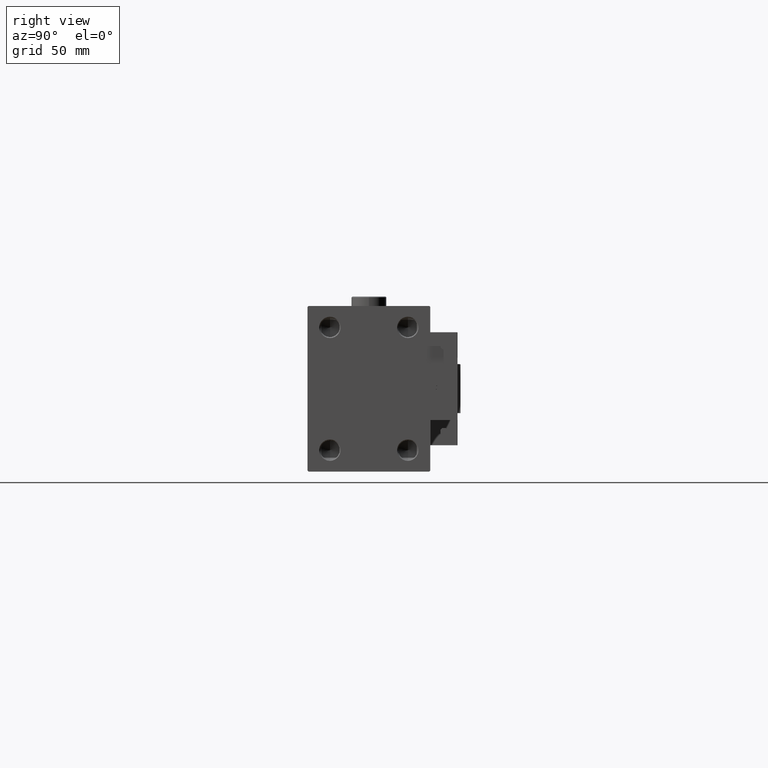
[diagram: clean part render]
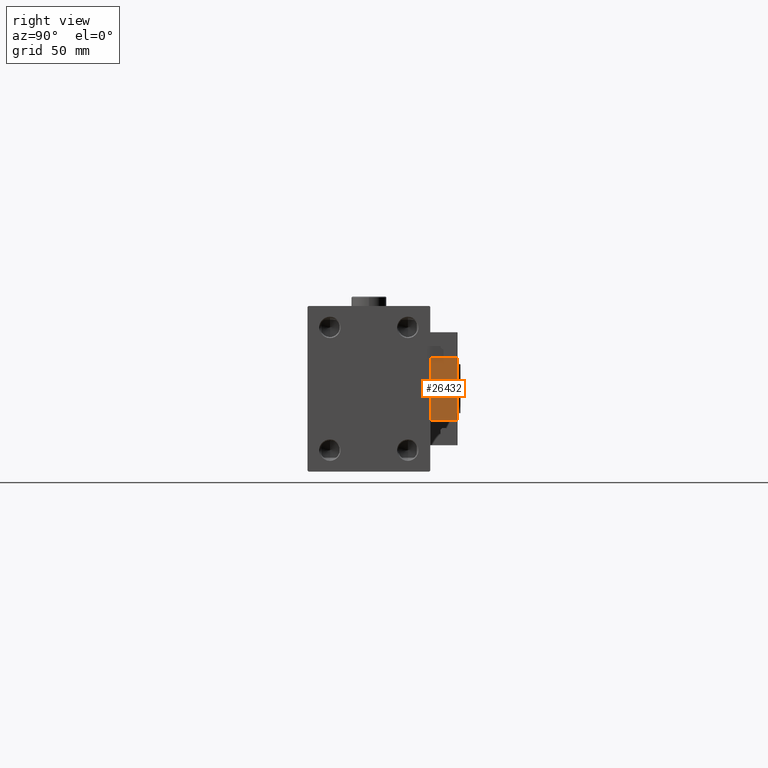
[diagram: same view with one face highlighted and labeled with its STEP entity id]
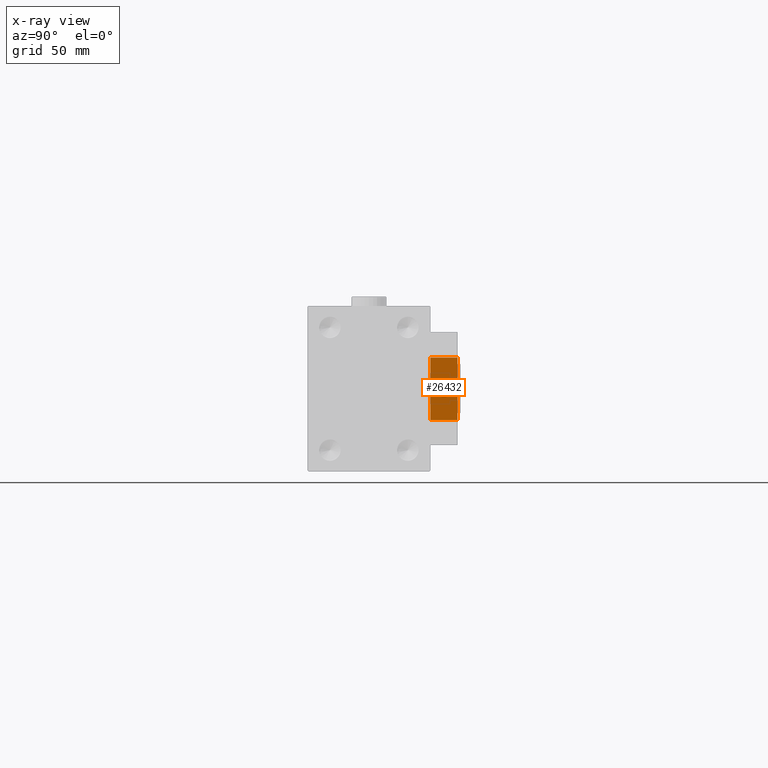
[diagram: x-ray of the same camera — body ghosted, the highlighted face saturated]
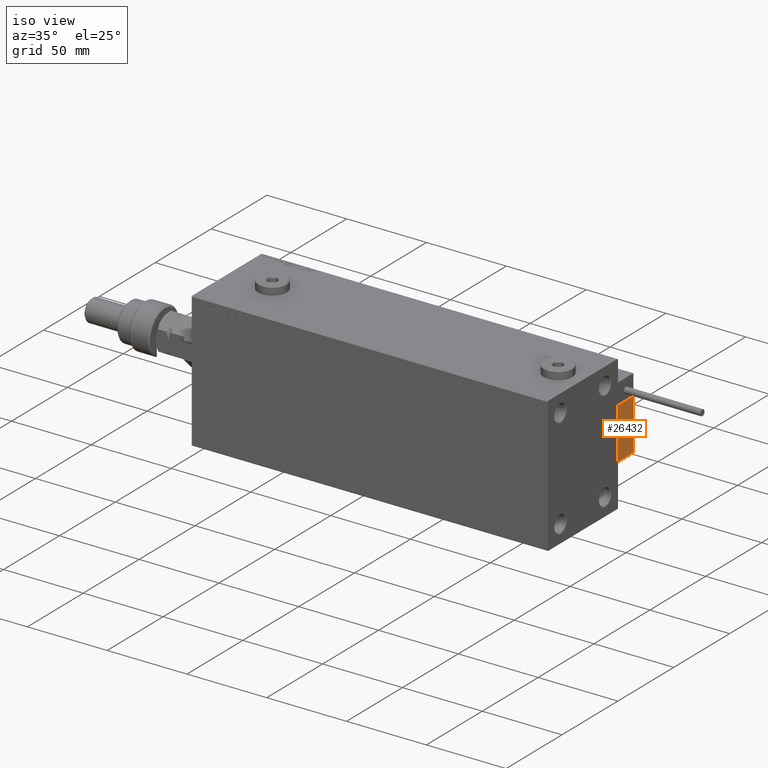
[diagram: same view with one face highlighted and labeled with its STEP entity id]
A machine part, right view. The second image highlights one B-rep face of the part: STEP entity #26432.
The next image is the same camera in x-ray: the body ghosted, the highlighted face saturated — about 0% of this face is hidden behind the body in this view.
A second angle (iso view) of the same face is appended — the face is thin or edge-on in the first view.
In plain terms, the highlighted planar face has unit normal (-1, 0, 0).
Its self-contained STEP definition (entity closure, byte-faithful):
#731 = CARTESIAN_POINT ( 'NONE',  ( 10.00000000000000000, 4.898587196589412829E-16, -4.000000000000000000 ) ) ;
#3433 = ORIENTED_EDGE ( 'NONE', *, *, #26570, .T. ) ;
#3552 = FACE_BOUND ( 'NONE', #41941, .T. ) ;
#3662 = VECTOR ( 'NONE', #28441, 1000.000000000000000 ) ;
#5487 = CARTESIAN_POINT ( 'NONE',  ( 10.00000000000000000, 0.000000000000000000, 4.000000000000000000 ) ) ;
#6247 = CARTESIAN_POINT ( 'NONE',  ( 10.00000000000000000, 7.000000000000000000, 15.99999999999999289 ) ) ;
#6291 = VECTOR ( 'NONE', #22151, 1000.000000000000000 ) ;
#7774 = FACE_OUTER_BOUND ( 'NONE', #15300, .T. ) ;
#8973 = VERTEX_POINT ( 'NONE', #41497 ) ;
#9253 = VECTOR ( 'NONE', #41153, 1000.000000000000000 ) ;
#9453 = ORIENTED_EDGE ( 'NONE', *, *, #32492, .T. ) ;
#9821 = CARTESIAN_POINT ( 'NONE',  ( 10.00000000000000000, 7.000000000000000000, -16.00000000000000711 ) ) ;
#10449 = CARTESIAN_POINT ( 'NONE',  ( 10.00000000000000000, 0.000000000000000000, 0.000000000000000000 ) ) ;
#10999 = DIRECTION ( 'NONE',  ( -1.000000000000000000, 0.000000000000000000, 0.000000000000000000 ) ) ;
#11125 = DIRECTION ( 'NONE',  ( -1.000000000000000000, 0.000000000000000000, -0.000000000000000000 ) ) ;
#11674 = VERTEX_POINT ( 'NONE', #42829 ) ;
#12008 = CARTESIAN_POINT ( 'NONE',  ( 10.00000000000000000, -7.000000000000000000, 15.99999999999999289 ) ) ;
#13876 = DIRECTION ( 'NONE',  ( 0.000000000000000000, 0.000000000000000000, 1.000000000000000000 ) ) ;
#15300 = EDGE_LOOP ( 'NONE', ( #19698, #49853, #37059, #48893 ) ) ;
#18088 = CARTESIAN_POINT ( 'NONE',  ( 10.00000000000000000, 0.000000000000000000, 0.000000000000000000 ) ) ;
#19309 = VERTEX_POINT ( 'NONE', #5487 ) ;
#19436 = VERTEX_POINT ( 'NONE', #731 ) ;
#19698 = ORIENTED_EDGE ( 'NONE', *, *, #48797, .T. ) ;
#20915 = PLANE ( 'NONE',  #29149 ) ;
#22151 = DIRECTION ( 'NONE',  ( 0.000000000000000000, -1.000000000000000000, 0.000000000000000000 ) ) ;
#22679 = EDGE_CURVE ( 'NONE', #23864, #11674, #46074, .T. ) ;
#23864 = VERTEX_POINT ( 'NONE', #37068 ) ;
#24078 = LINE ( 'NONE', #12008, #9253 ) ;
#24854 = DIRECTION ( 'NONE',  ( -0.000000000000000000, 0.000000000000000000, 1.000000000000000000 ) ) ;
#26432 = ADVANCED_FACE ( 'NONE', ( #3552, #7774 ), #20915, .F. ) ;
#26570 = EDGE_CURVE ( 'NONE', #19309, #19436, #28268, .T. ) ;
#26611 = AXIS2_PLACEMENT_3D ( 'NONE', #18088, #52233, #13876 ) ;
#26904 = LINE ( 'NONE', #9821, #6291 ) ;
#27258 = LINE ( 'NONE', #6247, #47985 ) ;
#28268 = CIRCLE ( 'NONE', #30953, 4.000000000000000000 ) ;
#28441 = DIRECTION ( 'NONE',  ( 0.000000000000000000, 0.000000000000000000, -1.000000000000000000 ) ) ;
#29149 = AXIS2_PLACEMENT_3D ( 'NONE', #50045, #11125, #24854 ) ;
#30434 = EDGE_CURVE ( 'NONE', #23864, #8973, #27258, .T. ) ;
#30953 = AXIS2_PLACEMENT_3D ( 'NONE', #10449, #10999, #53568 ) ;
#32121 = VERTEX_POINT ( 'NONE', #49192 ) ;
#32492 = EDGE_CURVE ( 'NONE', #19436, #19309, #38233, .T. ) ;
#32626 = CARTESIAN_POINT ( 'NONE',  ( 10.00000000000000000, 7.000000000000000000, 15.99999999999999289 ) ) ;
#37059 = ORIENTED_EDGE ( 'NONE', *, *, #22679, .F. ) ;
#37068 = CARTESIAN_POINT ( 'NONE',  ( 10.00000000000000000, 7.000000000000000000, 15.99999999999999289 ) ) ;
#38233 = CIRCLE ( 'NONE', #26611, 4.000000000000000000 ) ;
#38935 = EDGE_CURVE ( 'NONE', #11674, #32121, #26904, .T. ) ;
#41153 = DIRECTION ( 'NONE',  ( 0.000000000000000000, 0.000000000000000000, -1.000000000000000000 ) ) ;
#41497 = CARTESIAN_POINT ( 'NONE',  ( 10.00000000000000000, -7.000000000000000000, 15.99999999999999289 ) ) ;
#41941 = EDGE_LOOP ( 'NONE', ( #3433, #9453 ) ) ;
#42829 = CARTESIAN_POINT ( 'NONE',  ( 10.00000000000000000, 7.000000000000000000, -16.00000000000000711 ) ) ;
#43799 = DIRECTION ( 'NONE',  ( 0.000000000000000000, -1.000000000000000000, 0.000000000000000000 ) ) ;
#46074 = LINE ( 'NONE', #32626, #3662 ) ;
#47985 = VECTOR ( 'NONE', #43799, 1000.000000000000000 ) ;
#48797 = EDGE_CURVE ( 'NONE', #8973, #32121, #24078, .T. ) ;
#48893 = ORIENTED_EDGE ( 'NONE', *, *, #30434, .T. ) ;
#49192 = CARTESIAN_POINT ( 'NONE',  ( 10.00000000000000000, -7.000000000000000000, -16.00000000000000711 ) ) ;
#49853 = ORIENTED_EDGE ( 'NONE', *, *, #38935, .F. ) ;
#50045 = CARTESIAN_POINT ( 'NONE',  ( 10.00000000000000000, 0.000000000000000000, 0.000000000000000000 ) ) ;
#52233 = DIRECTION ( 'NONE',  ( -1.000000000000000000, 0.000000000000000000, 0.000000000000000000 ) ) ;
#53568 = DIRECTION ( 'NONE',  ( 0.000000000000000000, 0.000000000000000000, 1.000000000000000000 ) ) ;